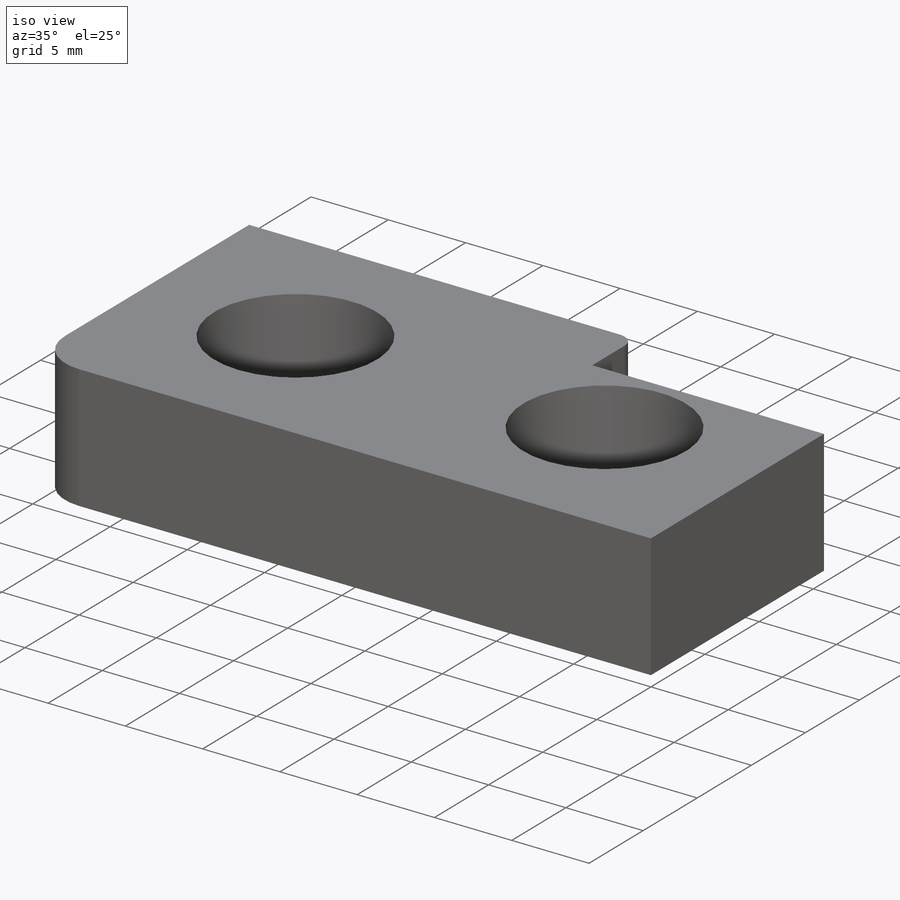
[diagram: iso view]
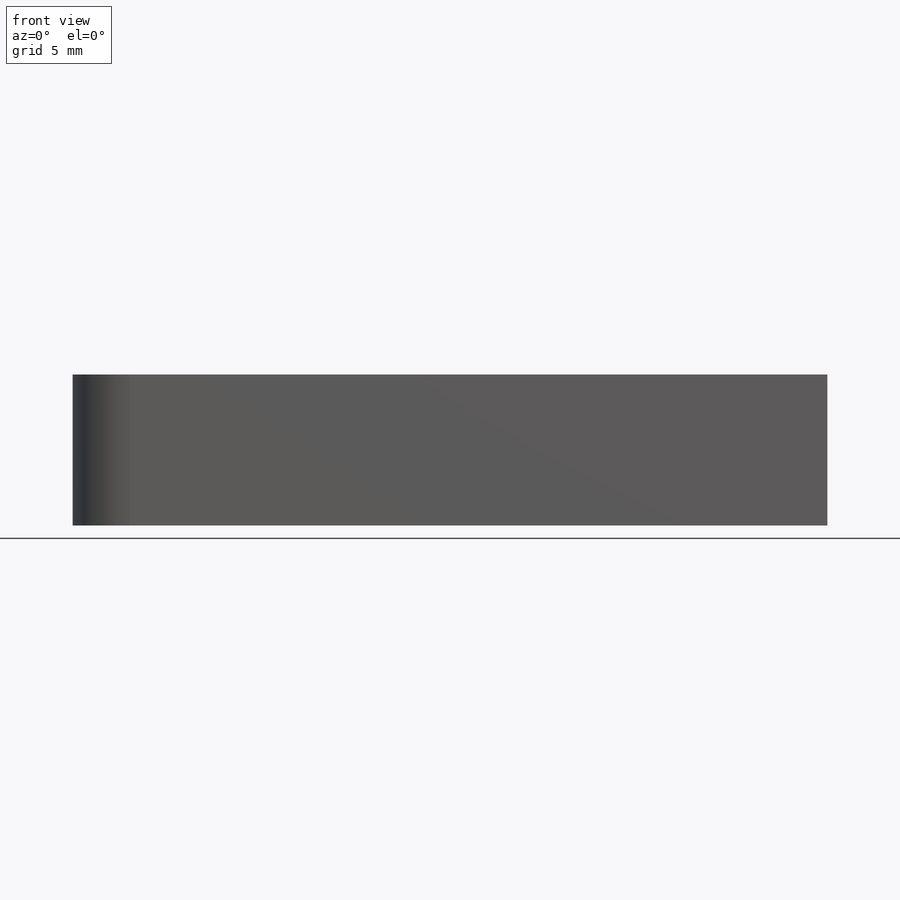
[diagram: front view]
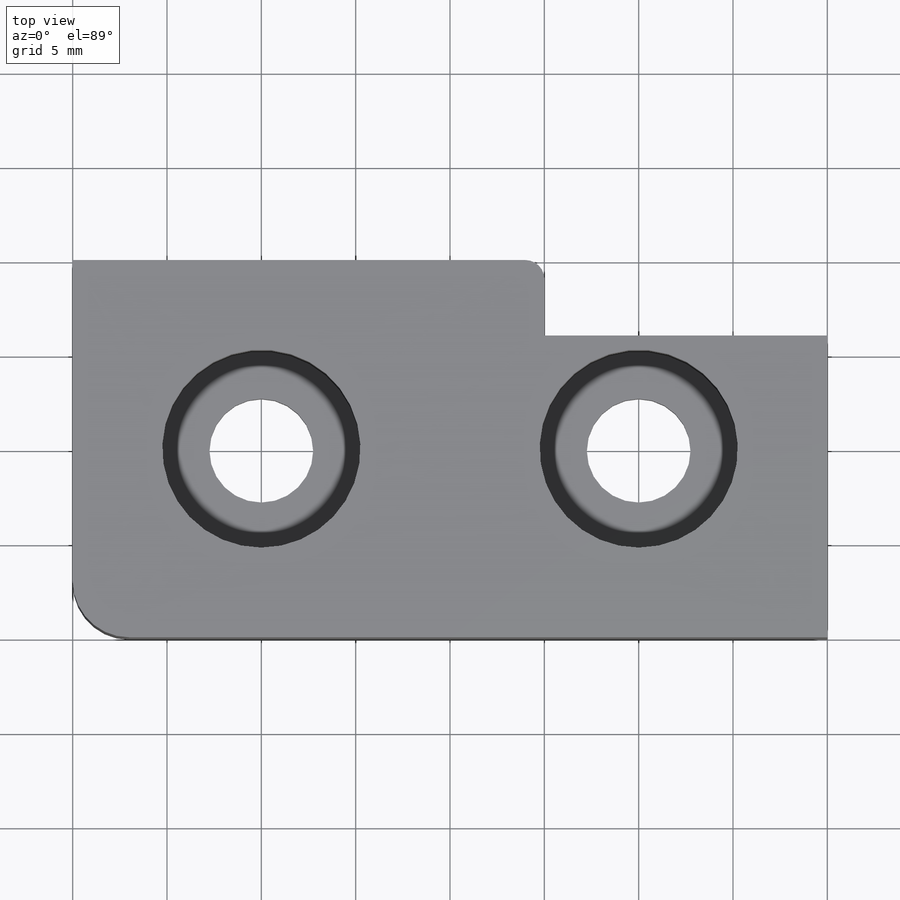
[diagram: top view]
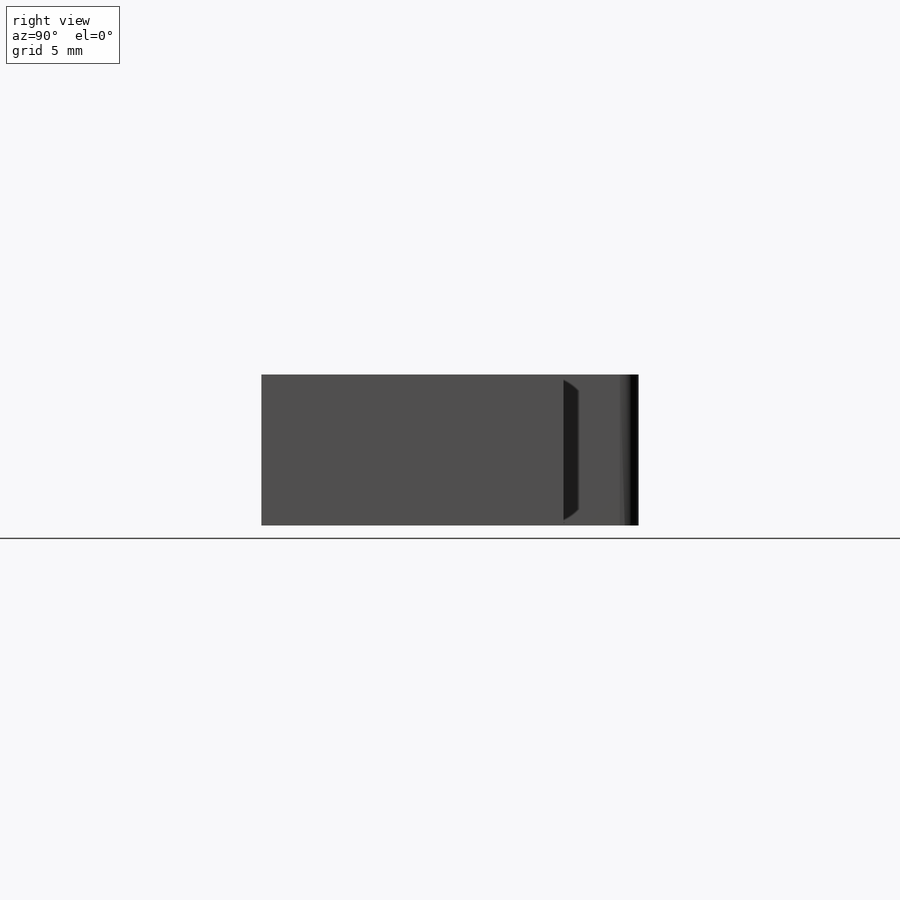
[diagram: right view]
SOLIDWORKS PART (.sldprt)
format: sldprt  version: not decoded by parser v0  size: 193,024 bytes
history: native  units: mm
features: sketch x4, material x1, extrude x1, hole x1 (+13 scaffold rows collapsed)
feature tree (20):
  scaffold x13  (default folders/planes/origin — collapsed)
  material  "Material <not specified>"
  sketch  "Sketch1"  dims[D6=3.0mm D7=1.0mm D1=20.0mm D2=40.0mm D3=15.0mm D4=5.0mm D5=4.0mm D8=10.0mm D9=30.0mm]
  extrude  "Boss-Extrude1"  Depth=8mm
  hole  "CBORE for M5 SHCS1"  Diameter=5.5mm Depth=8mm
  sketch  "Sketch3"
  sketch  "Sketch2"  dims[hole-wizard template sketch: 42 standard entries collapsed; hole parameters kept: c12.Thru Hole Depth=8.0mm c12.C'Bore Dia.=10.5mm c12.C'Bore Depth=6.0mm]
  sketch  "Sketch4"  dims[c1.D3=10.5mm c1.D1=10.6mm c1.D2=19.8mm c2.D3=6.0mm c2.D4=19.8mm]
decode coverage: 5 of 6 modeling features carry decoded parameters
note: ~ marks probable driven/reference dimensions
note: suppression state not decoded; provenance and decode notes live in map.json
